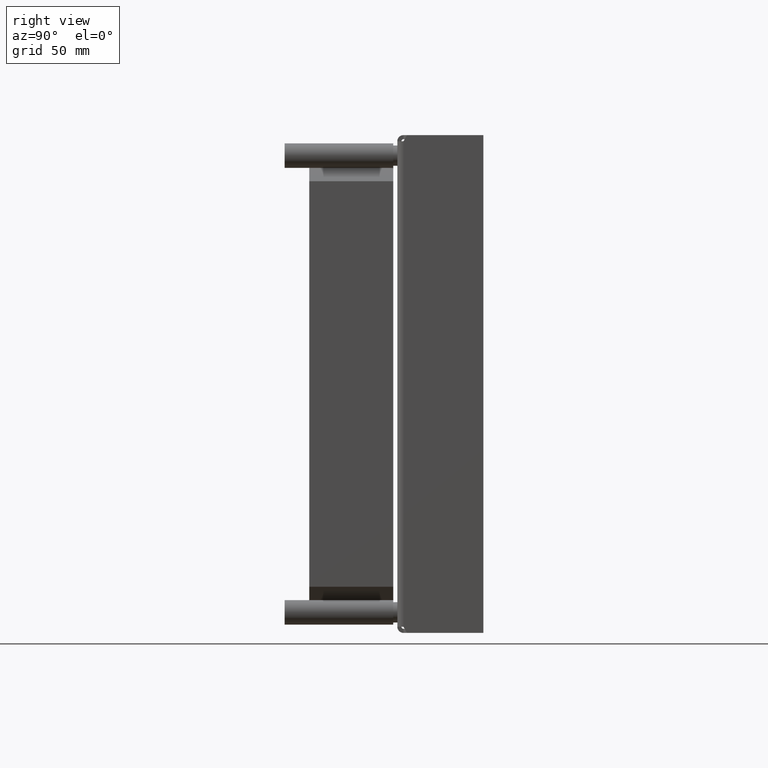
[diagram: clean part render]
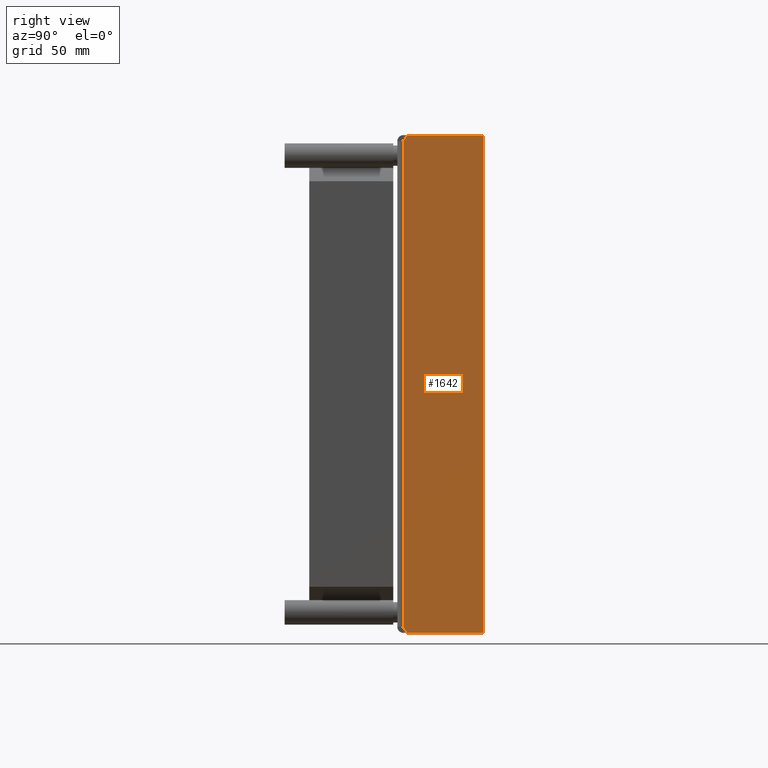
[diagram: same view with one face highlighted and labeled with its STEP entity id]
A machine part, right view. The second image highlights one B-rep face of the part: STEP entity #1642.
In plain terms, the highlighted planar face has unit normal (-1, 0, 0).
Its self-contained STEP definition (entity closure, byte-faithful):
#659=DIRECTION('',(0.E0,0.E0,1.E0));
#660=VECTOR('',#659,2.37E2);
#661=CARTESIAN_POINT('',(1.215E2,3.E0,-1.185E2));
#662=LINE('',#661,#660);
#689=DIRECTION('',(0.E0,-1.E0,0.E0));
#690=VECTOR('',#689,3.726794919243E1);
#691=CARTESIAN_POINT('',(1.215E2,4.2E1,-1.215E2));
#692=LINE('',#691,#690);
#696=DIRECTION('',(0.E0,-5.E-1,8.660254037844E-1));
#697=VECTOR('',#696,3.464101615138E0);
#698=CARTESIAN_POINT('',(1.215E2,4.732050807569E0,-1.215E2));
#699=LINE('',#698,#697);
#703=DIRECTION('',(0.E0,-5.E-1,-8.660254037844E-1));
#704=VECTOR('',#703,3.464101615138E0);
#705=CARTESIAN_POINT('',(1.215E2,4.732050807569E0,1.215E2));
#706=LINE('',#705,#704);
#710=DIRECTION('',(0.E0,-1.E0,0.E0));
#711=VECTOR('',#710,3.726794919243E1);
#712=CARTESIAN_POINT('',(1.215E2,4.2E1,1.215E2));
#713=LINE('',#712,#711);
#731=DIRECTION('',(0.E0,0.E0,-1.E0));
#732=VECTOR('',#731,2.43E2);
#733=CARTESIAN_POINT('',(1.215E2,4.2E1,1.215E2));
#734=LINE('',#733,#732);
#1189=CARTESIAN_POINT('',(1.215E2,4.2E1,-1.215E2));
#1190=CARTESIAN_POINT('',(1.215E2,4.732050807569E0,-1.215E2));
#1191=VERTEX_POINT('',#1189);
#1192=VERTEX_POINT('',#1190);
#1193=CARTESIAN_POINT('',(1.215E2,3.E0,-1.185E2));
#1194=VERTEX_POINT('',#1193);
#1217=CARTESIAN_POINT('',(1.215E2,4.2E1,1.215E2));
#1218=CARTESIAN_POINT('',(1.215E2,4.732050807569E0,1.215E2));
#1219=VERTEX_POINT('',#1217);
#1220=VERTEX_POINT('',#1218);
#1221=CARTESIAN_POINT('',(1.215E2,3.E0,1.185E2));
#1222=VERTEX_POINT('',#1221);
#1624=CARTESIAN_POINT('',(1.215E2,0.E0,-9.26316E1));
#1625=DIRECTION('',(-1.E0,0.E0,0.E0));
#1626=DIRECTION('',(0.E0,0.E0,1.E0));
#1627=AXIS2_PLACEMENT_3D('',#1624,#1625,#1626);
#1628=PLANE('',#1627);
#1630=ORIENTED_EDGE('',*,*,#1629,.T.);
#1632=ORIENTED_EDGE('',*,*,#1631,.T.);
#1634=ORIENTED_EDGE('',*,*,#1633,.T.);
#1635=ORIENTED_EDGE('',*,*,#1615,.T.);
#1637=ORIENTED_EDGE('',*,*,#1636,.F.);
#1639=ORIENTED_EDGE('',*,*,#1638,.F.);
#1640=EDGE_LOOP('',(#1630,#1632,#1634,#1635,#1637,#1639));
#1641=FACE_OUTER_BOUND('',#1640,.F.);
#1615=EDGE_CURVE('',#1194,#1222,#662,.T.);
#1629=EDGE_CURVE('',#1219,#1191,#734,.T.);
#1631=EDGE_CURVE('',#1191,#1192,#692,.T.);
#1633=EDGE_CURVE('',#1192,#1194,#699,.T.);
#1636=EDGE_CURVE('',#1220,#1222,#706,.T.);
#1638=EDGE_CURVE('',#1219,#1220,#713,.T.);
#1642=ADVANCED_FACE('',(#1641),#1628,.F.);